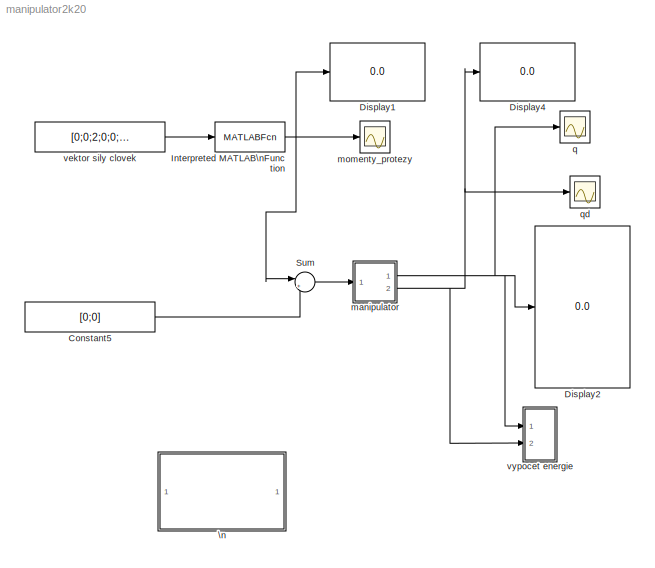
MODEL manipulator2k20
KIND model
BLOCK [Constant] Constant5
  SID = 2
  Value = [0;0]
BLOCK [Display] Display1
  Decimation = 1
  Ports = [1]
  SID = 27
BLOCK [Display] Display2
  Decimation = 1
  Ports = [1]
  SID = 3
BLOCK [Display] Display4
  Decimation = 1
  Ports = [1]
  SID = 4
BLOCK [MATLABFcn] Interpreted MATLAB\nFunction
  MATLABFcn = externi_sila
  Ports = [1, 1]
  SID = 25
BLOCK [Sum] Sum
  Inputs = |++
  Ports = [2, 1]
  SID = 28
BLOCK [SubSystem] \n
  OpenFcn = parsys
  Ports = []
  SID = 1
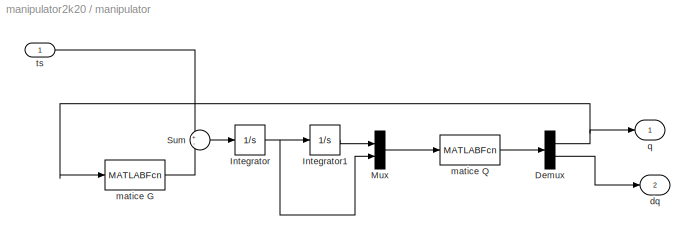
BLOCK [SubSystem] manipulator
  Ports = [1, 2]
  SID = 5
BLOCK [Demux] manipulator/Demux
  DisplayOption = none
  Outputs = [2 2]
  Ports = [1, 2]
  SID = 7
BLOCK [Integrator] manipulator/Integrator
  Ports = [1, 1]
  SID = 8
BLOCK [Integrator] manipulator/Integrator1
  InitialCondition = qic
  Ports = [1, 1]
  SID = 9
BLOCK [Mux] manipulator/Mux
  DisplayOption = bar
  Inputs = [2 2]
  Ports = [2, 1]
  SID = 10
BLOCK [Sum] manipulator/Sum
  InputSameDT = on
  Inputs = +-
  OutDataTypeStr = Inherit: Same as first input
  Ports = [2, 1]
  SID = 11
  SaturateOnIntegerOverflow = on
BLOCK [Outport] manipulator/dq
  NameLocation = top
  Port = 2
  SID = 15
  VectorParamsAs1DForOutWhenUnconnected = off
BLOCK [MATLABFcn] manipulator/matice G
  MATLABFcn = matice_G
  Ports = [1, 1]
  SID = 12
BLOCK [MATLABFcn] manipulator/matice Q
  MATLABFcn = matice_Q
  Ports = [1, 1]
  SID = 13
BLOCK [Outport] manipulator/q
  SID = 14
  VectorParamsAs1DForOutWhenUnconnected = off
BLOCK [Inport] manipulator/ts
  SID = 6
BLOCK [Scope] momenty_protezy
  Floating = off
  NumInputPorts = 1
  Ports = [1]
  SID = 26
  ScopeSpecificationString = Simulink.scopes.TimeScopeBlockCfg('CurrentConfiguration', extmgr.ConfigurationSet(extmgr.Configuration('Core','General UI',true),extmgr.Configuration('Core','Source UI',true),extmgr.Configuration('Sources','WiredSimulink',true,'DataLogging',true,'DataLoggingVariableName','ScopeData1','DataLoggingSaveFormat','Array','DataLoggingLimitDataPoints',true,'DataLoggingDecimation','1','DataLoggingDecimateD...<+1815ch>
BLOCK [Scope] q
  Floating = off
  NumInputPorts = 1
  Ports = [1]
  SID = 16
  ScopeSpecificationString = Simulink.scopes.TimeScopeBlockCfg('CurrentConfiguration', extmgr.ConfigurationSet(extmgr.Configuration('Core','General UI',true),extmgr.Configuration('Core','Source UI',true),extmgr.Configuration('Sources','WiredSimulink',true,'DataLogging',true,'DataLoggingVariableName','Vystup','DataLoggingSaveFormat','Array','DataLoggingLimitDataPoints',true,'DataLoggingDecimation','1','DataLoggingDecimateData'...<+1799ch>
BLOCK [Scope] qd
  Floating = off
  NumInputPorts = 1
  Ports = [1]
  SID = 17
  ScopeSpecificationString = Simulink.scopes.TimeScopeBlockCfg('CurrentConfiguration', extmgr.ConfigurationSet(extmgr.Configuration('Core','General UI',true),extmgr.Configuration('Core','Source UI',true),extmgr.Configuration('Sources','WiredSimulink',true,'DataLoggingSaveFormat','StructureWithTime','DataLoggingLimitDataPoints',true,'DataLoggingDecimation','1','DataLoggingDecimateData',true),extmgr.Configuration('Visuals','Tim...<+1756ch>
BLOCK [Constant] vektor sily clovek
  SID = 24
  Value = [0;0;2;0;0;0]
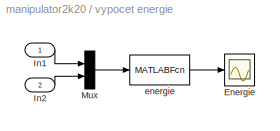
BLOCK [SubSystem] vypocet energie
  Ports = [2]
  SID = 18
BLOCK [Scope] vypocet energie/Energie
  Floating = off
  NumInputPorts = 1
  Ports = [1]
  SID = 21
  ScopeSpecificationString = Simulink.scopes.TimeScopeBlockCfg('CurrentConfiguration', extmgr.ConfigurationSet(extmgr.Configuration('Core','General UI',true),extmgr.Configuration('Core','Source UI',true),extmgr.Configuration('Sources','WiredSimulink',true,'DataLoggingSaveFormat','StructureWithTime','DataLoggingLimitDataPoints',true,'DataLoggingDecimation','1','DataLoggingDecimateData',true),extmgr.Configuration('Visuals','Tim...<+1844ch>
BLOCK [Inport] vypocet energie/In1
  SID = 19
BLOCK [Inport] vypocet energie/In2
  Port = 2
  SID = 20
BLOCK [Mux] vypocet energie/Mux
  DisplayOption = bar
  Inputs = [2 2]
  Ports = [2, 1]
  SID = 22
BLOCK [MATLABFcn] vypocet energie/energie
  MATLABFcn = energie
  OutputDimensions = 3
  Ports = [1, 1]
  SID = 23
LINE Constant5:1 -> Sum:2
NET Interpreted MATLAB\nFunction:1 -> Display1:1, Sum:1, momenty_protezy:1
LINE Sum:1 -> manipulator:1
NET manipulator/Demux:1 -> manipulator/matice G:1, manipulator/q:1
LINE manipulator/Demux:2 -> manipulator/dq:1
LINE manipulator/Integrator1:1 -> manipulator/Mux:1
NET manipulator/Integrator:1 -> manipulator/Integrator1:1, manipulator/Mux:2
LINE manipulator/Mux:1 -> manipulator/matice Q:1
LINE manipulator/Sum:1 -> manipulator/Integrator:1
LINE manipulator/matice G:1 -> manipulator/Sum:2
LINE manipulator/matice Q:1 -> manipulator/Demux:1
LINE manipulator/ts:1 -> manipulator/Sum:1
NET manipulator:1 -> Display2:1, q:1, vypocet energie:1
NET manipulator:2 -> Display4:1, qd:1, vypocet energie:2
LINE vektor sily clovek:1 -> Interpreted MATLAB\nFunction:1
LINE vypocet energie/In1:1 -> vypocet energie/Mux:1
LINE vypocet energie/In2:1 -> vypocet energie/Mux:2
LINE vypocet energie/Mux:1 -> vypocet energie/energie:1
LINE vypocet energie/energie:1 -> vypocet energie/Energie:1
note: NET lines group one-source signal fan-out (src -> all destinations, sorted); 1:1 wires keep LINE
